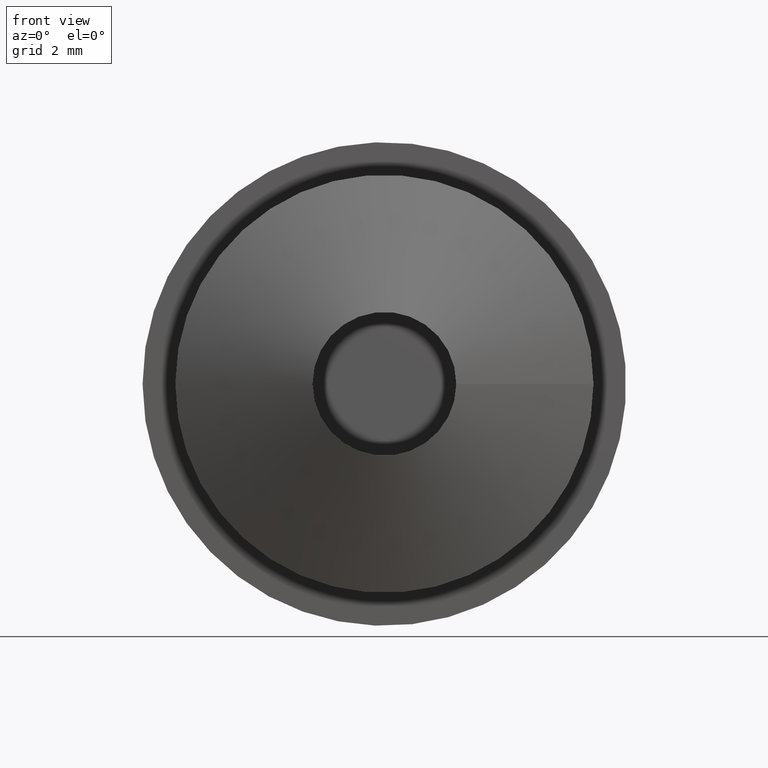
[diagram: clean part render]
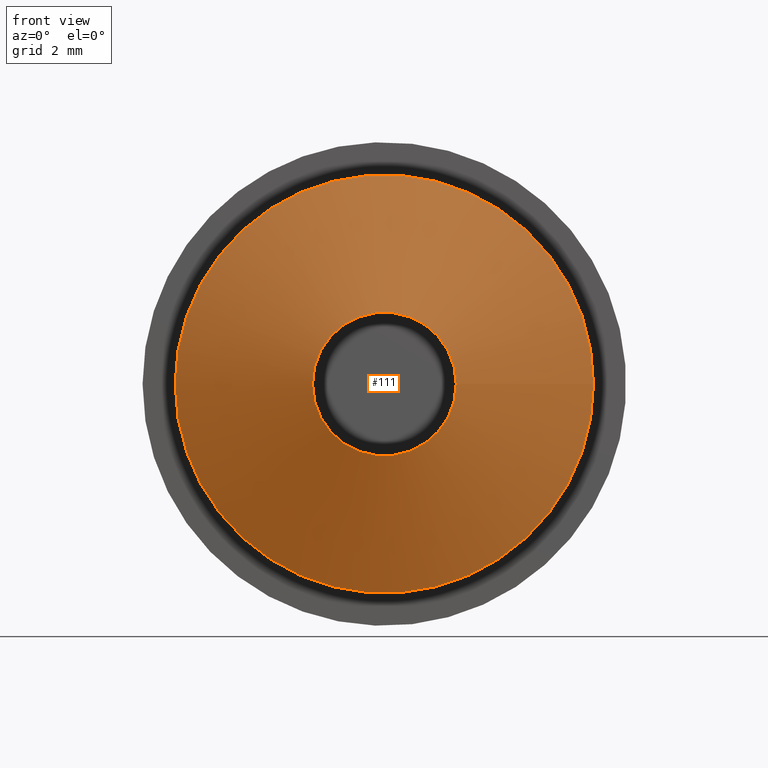
[diagram: same view with one face highlighted and labeled with its STEP entity id]
A machine part, front view. The second image highlights one B-rep face of the part: STEP entity #111.
In plain terms, the highlighted conical surface has half-angle 64.537 deg.
Its self-contained STEP definition (entity closure, byte-faithful):
#26=FACE_BOUND('',#50,.T.);
#36=FACE_OUTER_BOUND('',#49,.T.);
#49=EDGE_LOOP('',(#94));
#50=EDGE_LOOP('',(#95));
#63=CIRCLE('',#126,2.75);
#64=CIRCLE('',#129,8.);
#72=VERTEX_POINT('',#190);
#73=VERTEX_POINT('',#194);
#81=EDGE_CURVE('',#72,#72,#63,.T.);
#82=EDGE_CURVE('',#73,#73,#64,.T.);
#94=ORIENTED_EDGE('',*,*,#82,.T.);
#95=ORIENTED_EDGE('',*,*,#81,.T.);
#105=CONICAL_SURFACE('',#128,8.,64.5366549381284);
#111=ADVANCED_FACE('',(#36,#26),#105,.T.);
#126=AXIS2_PLACEMENT_3D('',#191,#155,#156);
#128=AXIS2_PLACEMENT_3D('',#193,#159,#160);
#129=AXIS2_PLACEMENT_3D('',#195,#161,#162);
#155=DIRECTION('center_axis',(0.,1.,0.));
#156=DIRECTION('ref_axis',(-1.,0.,0.));
#159=DIRECTION('center_axis',(0.,1.,0.));
#160=DIRECTION('ref_axis',(-1.,0.,0.));
#161=DIRECTION('center_axis',(0.,-1.,0.));
#162=DIRECTION('ref_axis',(-1.,0.,0.));
#190=CARTESIAN_POINT('',(2.75,-7.,3.36777869765522E-16));
#191=CARTESIAN_POINT('Origin',(0.,-7.,0.));
#193=CARTESIAN_POINT('Origin',(0.,-4.5,0.));
#194=CARTESIAN_POINT('',(8.,-4.5,9.79717439317883E-16));
#195=CARTESIAN_POINT('Origin',(0.,-4.5,0.));